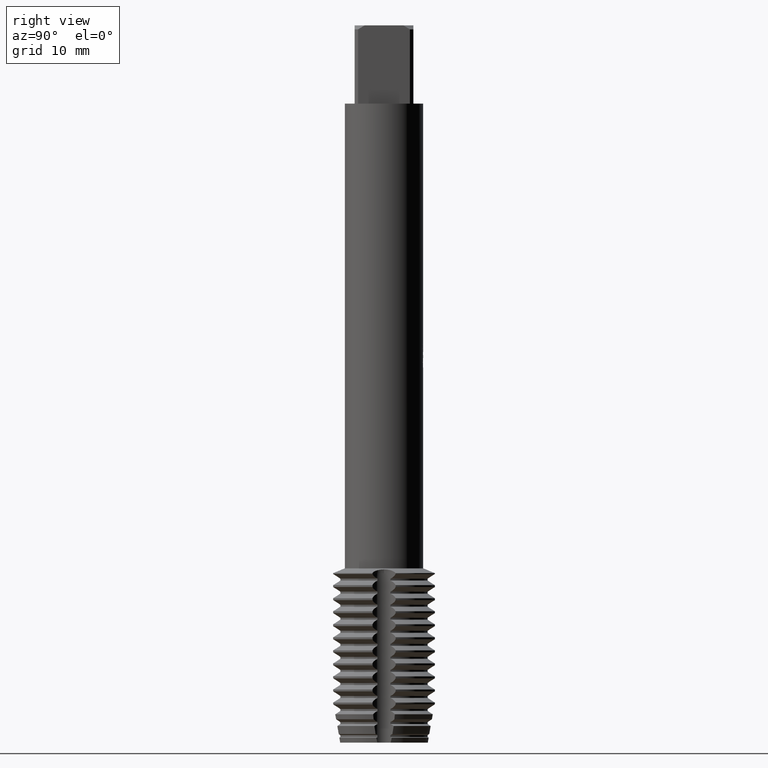
[diagram: clean part render]
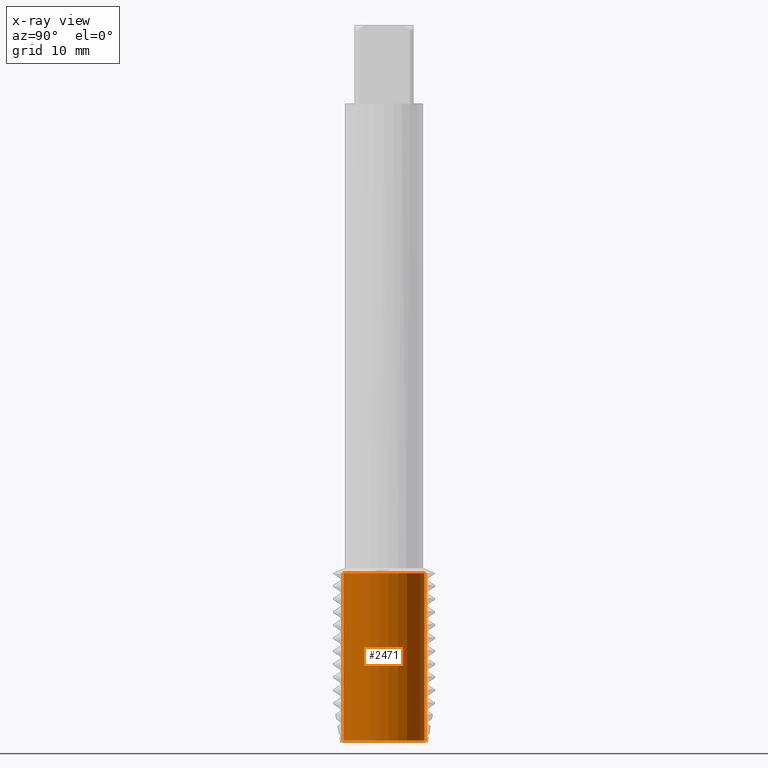
[diagram: x-ray — body ghosted, one internal face saturated and labeled with its STEP entity id]
A machine part, right view, then the same camera in x-ray: the body is ghosted and one INTERNAL B-rep face — a face not visible from any outside direction — is saturated and labeled: STEP entity #2471.
In plain terms, the highlighted cylindrical surface (partial cylindrical patch) has radius 6.2257 mm, axis along (-0, -0, 1).
Its self-contained STEP definition (entity closure, byte-faithful):
#1857=EDGE_CURVE('',#3005,#3639,#5102,.T.);
#2423=EDGE_CURVE('',#3005,#3559,#5715,.T.);
#2471=ADVANCED_FACE('',(#5768),#5769,.F.);
#3005=VERTEX_POINT('',#6355);
#3559=VERTEX_POINT('',#6950);
#3639=VERTEX_POINT('',#7033);
#4181=EDGE_CURVE('',#4235,#3639,#7620,.T.);
#4235=VERTEX_POINT('',#7676);
#4699=EDGE_CURVE('',#3559,#4235,#8188,.T.);
#5102=CIRCLE('',#8803,6.22572142);
#5715=LINE('',#10051,#10052);
#5768=FACE_OUTER_BOUND('',#10163,.T.);
#5769=CYLINDRICAL_SURFACE('',#10164,6.22572142);
#6355=CARTESIAN_POINT('',(0.0,6.22572142,-84.0));
#6950=CARTESIAN_POINT('',(0.0,6.22572142,-109.744314702826));
#7033=CARTESIAN_POINT('',(7.62405800806007E-016,-6.22572142,-84.0));
#7620=LINE('',#13659,#13660);
#7676=CARTESIAN_POINT('',(7.62405800806007E-016,-6.22572142,-109.744314702826));
#8188=CIRCLE('',#14787,6.22572142);
#8803=AXIS2_PLACEMENT_3D('',#15538,#15539,#15540);
#10051=CARTESIAN_POINT('',(-7.62405800806007E-016,6.22572142,-96.8721573514129));
#10052=VECTOR('',#16203,1.0);
#10163=EDGE_LOOP('',(#16265,#16266,#16267,#16268));
#10164=AXIS2_PLACEMENT_3D('',#16269,#16270,#16271);
#13659=CARTESIAN_POINT('',(7.62405800806007E-016,-6.22572142,-96.8721573514129));
#13660=VECTOR('',#18010,1.0);
#14787=AXIS2_PLACEMENT_3D('',#18689,#18690,#18691);
#15538=CARTESIAN_POINT('',(0.0,0.0,-84.0));
#15539=DIRECTION('',(0.0,0.0,-1.0));
#15540=DIRECTION('',(0.0,1.0,0.0));
#16203=DIRECTION('',(0.0,-0.0,-1.0));
#16265=ORIENTED_EDGE('',*,*,#2423,.T.);
#16266=ORIENTED_EDGE('',*,*,#4699,.T.);
#16267=ORIENTED_EDGE('',*,*,#4181,.T.);
#16268=ORIENTED_EDGE('',*,*,#1857,.F.);
#16269=CARTESIAN_POINT('',(0.0,0.0,-96.8721573514129));
#16270=DIRECTION('',(-0.0,-0.0,1.0));
#16271=DIRECTION('',(0.0,1.0,0.0));
#18010=DIRECTION('',(0.0,-0.0,1.0));
#18689=CARTESIAN_POINT('',(0.0,0.0,-109.744314702826));
#18690=DIRECTION('',(0.0,0.0,-1.0));
#18691=DIRECTION('',(0.0,1.0,0.0));